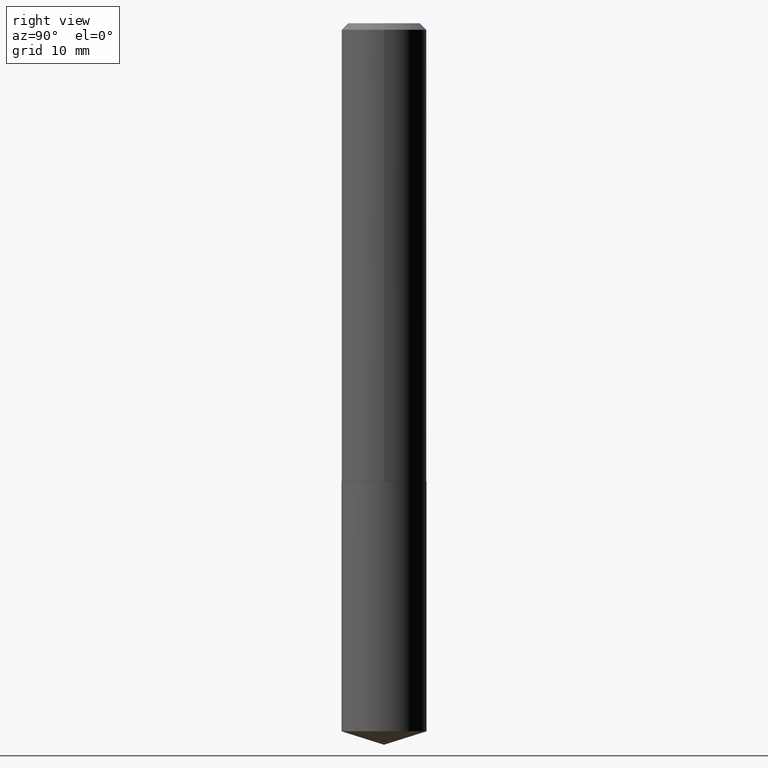
[diagram: clean part render]
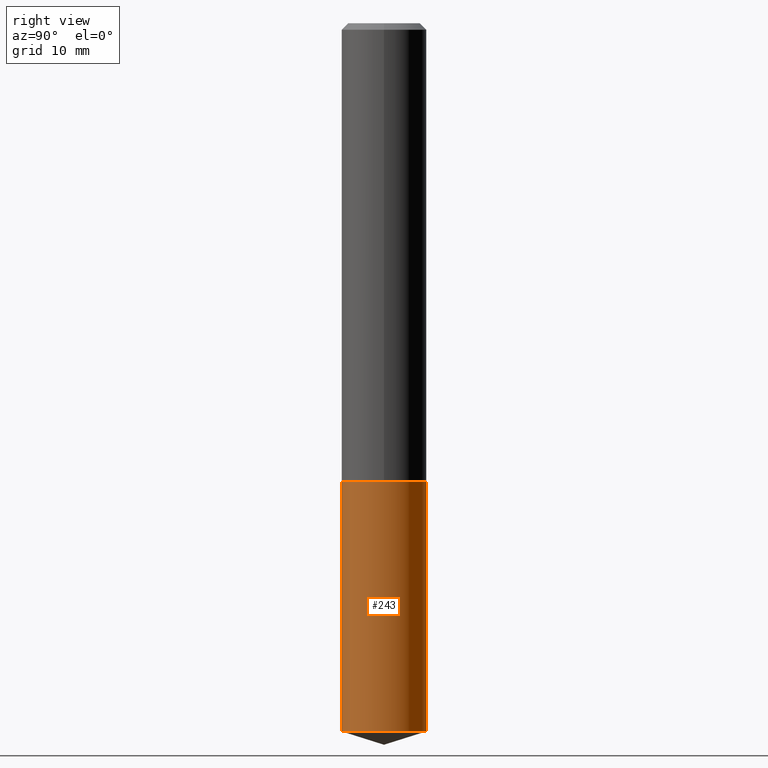
[diagram: same view with one face highlighted and labeled with its STEP entity id]
A machine part, right view. The second image highlights one B-rep face of the part: STEP entity #243.
In plain terms, the highlighted cylindrical surface (partial cylindrical patch) has radius 5.2502 mm, axis along (-0, 0, 1).
Its self-contained STEP definition (entity closure, byte-faithful):
#6 = VERTEX_POINT ( 'NONE', #215 ) ;
#11 = DIRECTION ( 'NONE',  ( -6.982962677686265133E-15, -1.000000000000000000, 2.643297526525653668E-15 ) ) ;
#12 = CYLINDRICAL_SURFACE ( 'NONE', #163, 0.2067000000000000226 ) ;
#15 = LINE ( 'NONE', #98, #258 ) ;
#18 = ORIENTED_EDGE ( 'NONE', *, *, #291, .F. ) ;
#34 = CIRCLE ( 'NONE', #379, 0.2067000000000000226 ) ;
#38 = DIRECTION ( 'NONE',  ( -2.444969995752846292E-29, 3.492195663772712113E-15, 1.000000000000000000 ) ) ;
#54 = AXIS2_PLACEMENT_3D ( 'NONE', #158, #188, #371 ) ;
#60 = VERTEX_POINT ( 'NONE', #357 ) ;
#72 = CARTESIAN_POINT ( 'NONE',  ( 8.408695702616728829E-29, -1.200712115933246900E-14, -3.438727740338714867 ) ) ;
#73 = DIRECTION ( 'NONE',  ( -6.982962677686265133E-15, -1.000000000000000000, 3.964946289788480107E-15 ) ) ;
#83 = EDGE_LOOP ( 'NONE', ( #237, #141, #164, #18 ) ) ;
#95 = VECTOR ( 'NONE', #150, 39.37007874015748143 ) ;
#98 = CARTESIAN_POINT ( 'NONE',  ( -1.443378385477696981E-15, -0.2067000000000077664, -2.224399999999998823 ) ) ;
#141 = ORIENTED_EDGE ( 'NONE', *, *, #333, .T. ) ;
#146 = FACE_OUTER_BOUND ( 'NONE', #83, .T. ) ;
#150 = DIRECTION ( 'NONE',  ( -2.444969995752846292E-29, 3.492195663772712507E-15, 1.000000000000000000 ) ) ;
#151 = CARTESIAN_POINT ( 'NONE',  ( -1.443378385477666413E-15, -0.2067000000000119853, -3.438727740338714423 ) ) ;
#158 = CARTESIAN_POINT ( 'NONE',  ( 5.439700812478216893E-29, -7.766451090122692732E-15, -2.224399999999999711 ) ) ;
#163 = AXIS2_PLACEMENT_3D ( 'NONE', #251, #334, #73 ) ;
#164 = ORIENTED_EDGE ( 'NONE', *, *, #255, .F. ) ;
#188 = DIRECTION ( 'NONE',  ( -2.444969995752846292E-29, 3.492195663772712113E-15, 1.000000000000000000 ) ) ;
#192 = CARTESIAN_POINT ( 'NONE',  ( -1.443378385477696981E-15, -0.2067000000000077664, -2.224399999999998823 ) ) ;
#215 = CARTESIAN_POINT ( 'NONE',  ( 1.468691834816210864E-15, 0.2066999999999878934, -3.438727740338715755 ) ) ;
#237 = ORIENTED_EDGE ( 'NONE', *, *, #384, .T. ) ;
#243 = ADVANCED_FACE ( 'NONE', ( #146 ), #12, .T. ) ;
#251 = CARTESIAN_POINT ( 'NONE',  ( 5.439700812478216893E-29, -7.766451090122692732E-15, -2.224399999999999711 ) ) ;
#254 = DIRECTION ( 'NONE',  ( -2.444969995752846292E-29, 3.492195663772712507E-15, 1.000000000000000000 ) ) ;
#255 = EDGE_CURVE ( 'NONE', #308, #60, #288, .T. ) ;
#258 = VECTOR ( 'NONE', #254, 39.37007874015748143 ) ;
#288 = CIRCLE ( 'NONE', #54, 0.2067000000000000226 ) ;
#291 = EDGE_CURVE ( 'NONE', #294, #308, #15, .T. ) ;
#294 = VERTEX_POINT ( 'NONE', #151 ) ;
#308 = VERTEX_POINT ( 'NONE', #192 ) ;
#313 = CARTESIAN_POINT ( 'NONE',  ( 1.468691834816181282E-15, 0.2066999999999922510, -2.224400000000000599 ) ) ;
#333 = EDGE_CURVE ( 'NONE', #6, #60, #335, .T. ) ;
#334 = DIRECTION ( 'NONE',  ( -2.444969995752846292E-29, 3.492195663772712113E-15, 1.000000000000000000 ) ) ;
#335 = LINE ( 'NONE', #313, #95 ) ;
#357 = CARTESIAN_POINT ( 'NONE',  ( 1.468691834816211258E-15, 0.2066999999999922510, -2.224400000000000599 ) ) ;
#371 = DIRECTION ( 'NONE',  ( -6.982962677686265133E-15, -1.000000000000000000, 3.964946289788480107E-15 ) ) ;
#379 = AXIS2_PLACEMENT_3D ( 'NONE', #72, #38, #11 ) ;
#384 = EDGE_CURVE ( 'NONE', #294, #6, #34, .T. ) ;